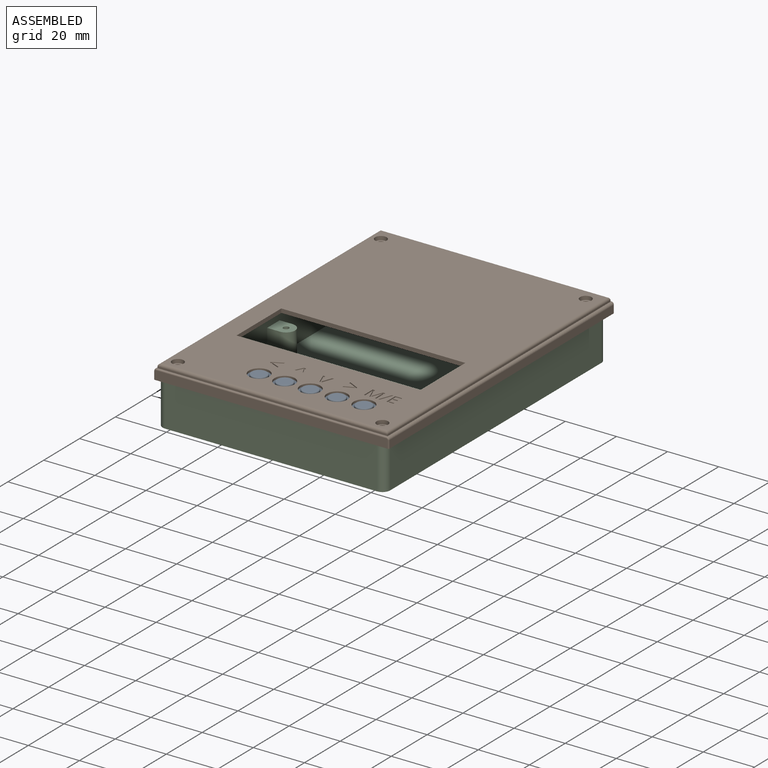
[diagram: assembled view]
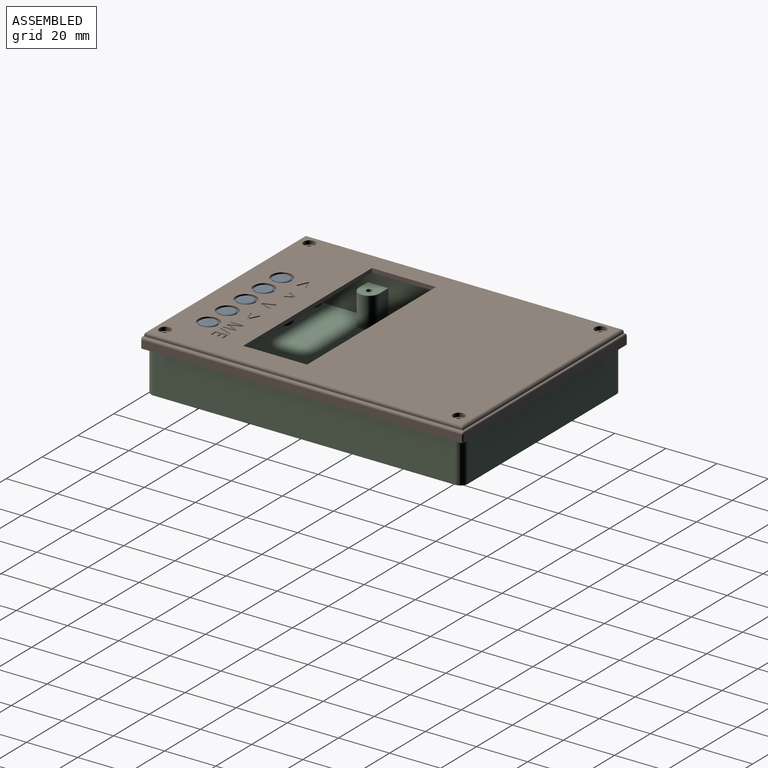
[diagram: assembled view, second angle]
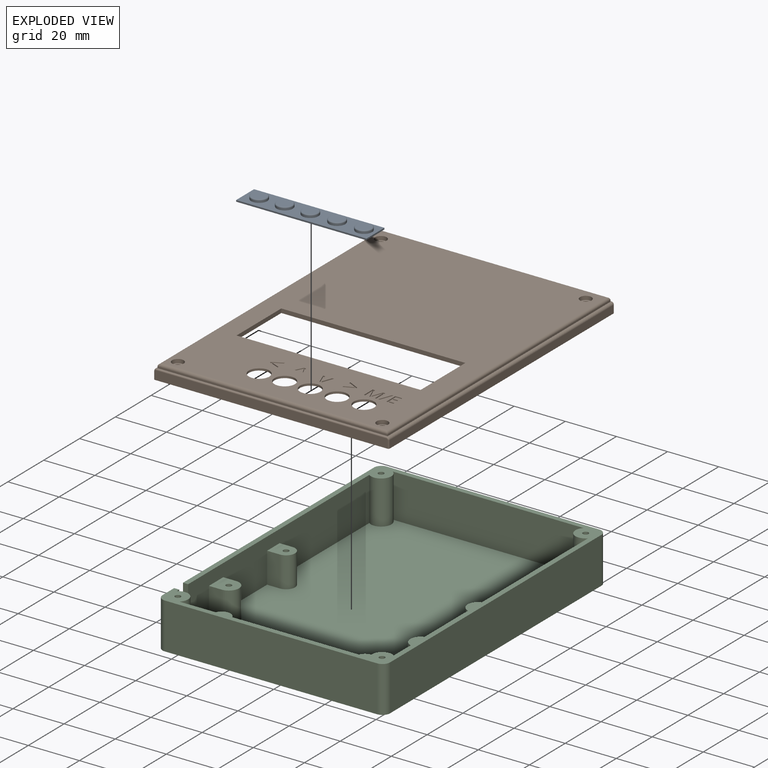
[diagram: exploded view]
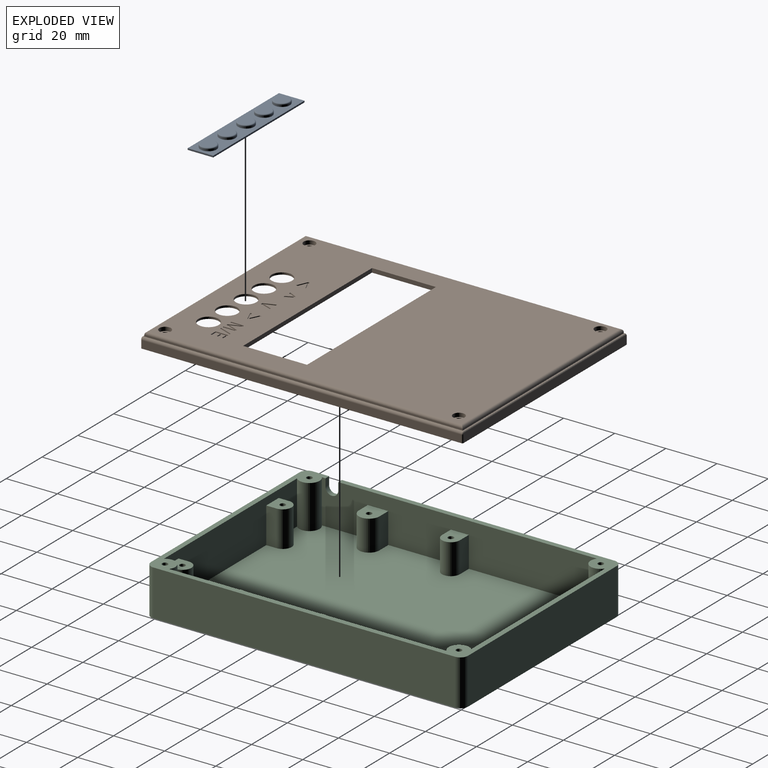
[diagram: exploded view, second angle]
ASSEMBLY  parts=3 mates=2
PART A: 31 faces, bbox 51x10x1.8 mm
  f0: plane 51x0.6mm, normal (0,-1,0), area 30.6mm2, adj f1,f7,f9,f10
  f1: plane 10x0.6mm, normal (1,0,0), area 6mm2, adj f0,f2,f9,f10
  f2: plane 51x0.6mm, normal (0,1,0), area 30.6mm2, adj f1,f7,f9,f10
  f3: cylinder r=2.25mm len=4.5mm, axis (0,0,-1), area 17mm2, adj f10,f22
  f4: cylinder r=2.25mm len=4.5mm, axis (0,0,-1), area 17mm2, adj f10,f20
  f5: cylinder r=2.25mm len=4.5mm, axis (0,0,-1), area 17mm2, adj f10,f18
  f6: cylinder r=2.25mm len=4.5mm, axis (0,0,-1), area 17mm2, adj f10,f16
  f7: plane 10x0.6mm, normal (-1,0,0), area 6mm2, adj f0,f2,f9,f10
  f8: cylinder r=2.25mm len=4.5mm, axis (0,0,-1), area 17mm2, adj f10,f24
  f9: plane 51x10mm, normal (0,0,1), area 354.1mm2, adj f0,f1,f2,f7,f11,f12,f13,f14
  f10: plane 51x10mm, normal (0,0,-1), area 430.5mm2, adj f0,f1,f2,f3,f4,f5,f6,f7
  f11: cylinder r=3.15mm len=6.3mm, axis (0,0,-1), area 15.8mm2, adj f9,f30
  f12: cylinder r=3.15mm len=6.3mm, axis (0,0,-1), area 15.8mm2, adj f9,f29
  f13: cylinder r=3.15mm len=6.3mm, axis (0,0,-1), area 15.8mm2, adj f9,f28
  f14: cylinder r=3.15mm len=6.3mm, axis (0,0,-1), area 15.8mm2, adj f9,f27
  f15: cylinder r=3.15mm len=6.3mm, axis (0,0,-1), area 15.8mm2, adj f9,f26
  f16: plane 4.5x4.5mm, normal (0,0,-1), area 15.9mm2, adj f6
  f17: plane 5.5x5.5mm, normal (0,0,1), area 23.8mm2, adj f30
  f18: plane 4.5x4.5mm, normal (0,0,-1), area 15.9mm2, adj f5
  f19: plane 5.5x5.5mm, normal (0,0,1), area 23.8mm2, adj f29
  f20: plane 4.5x4.5mm, normal (0,0,-1), area 15.9mm2, adj f4
  f21: plane 5.5x5.5mm, normal (0,0,1), area 23.8mm2, adj f28
  f22: plane 4.5x4.5mm, normal (0,0,-1), area 15.9mm2, adj f3
  f23: plane 5.5x5.5mm, normal (0,0,1), area 23.8mm2, adj f27
  f24: plane 4.5x4.5mm, normal (0,0,-1), area 15.9mm2, adj f8
  f25: plane 5.5x5.5mm, normal (0,0,1), area 23.8mm2, adj f26
  f26: torus R=2.75mm, axis (0,0,1), area 11.9mm2, adj f15,f25
  f27: torus R=2.75mm, axis (0,0,1), area 11.9mm2, adj f14,f23
  f28: torus R=2.75mm, axis (0,0,1), area 11.9mm2, adj f13,f21
  f29: torus R=2.75mm, axis (0,0,1), area 11.9mm2, adj f12,f19
  f30: torus R=2.75mm, axis (0,0,1), area 11.9mm2, adj f11,f17
PART B: 142 faces, bbox 92.2x126x5.6 mm
  f0: cylinder r=1.5mm len=3mm, axis (0,0,-1), area 24.5mm2, adj f35,f141
  f1: cylinder r=1.5mm len=3mm, axis (0,0,-1), area 24.5mm2, adj f35,f139
  f2: cylinder r=1.5mm len=3mm, axis (0,0,-1), area 24.5mm2, adj f35,f137
  f3: cylinder r=1.5mm len=3mm, axis (0,0,-1), area 24.5mm2, adj f35,f135
  f4: plane 122.5x88mm, normal (0,0,1), area 8626.3mm2, adj f14,f15,f16,f17,f18,f19,f20,f21
  f5: plane 12.75x1.5mm, normal (1,0,0), area 16.6mm2, adj f6,f35,f39,f61
  f6: plane 126x92mm, normal (0,0,-1), area 382.2mm2, adj f5,f36,f37,f38,f39,f40,f41,f42
  f7: plane 90x0.25mm, normal (0,0,1), area 22.5mm2, adj f11,f45,f46,f60
  f8: plane 124.5x0.6mm, normal (1,0,0), area 74.7mm2, adj f9,f11,f45,f48
  f9: plane 90x0.6mm, normal (0,1,0), area 54mm2, adj f8,f10,f44,f47
  f10: plane 124.5x0.6mm, normal (-1,0,0), area 74.7mm2, adj f9,f11,f46,f49
  f11: plane 90x0.6mm, normal (0,-1,0), area 54mm2, adj f7,f8,f10,f50
  f12: plane 120.5x86mm, normal (0,0,-1), area 7752.3mm2, adj f14,f15,f16,f21,f23,f24,f25,f26
  f13: plane 53x12mm, normal (0,0,-1), area 384.7mm2, adj f17,f18,f19,f20,f22,f23,f24,f25
  f14: plane 25x1.6mm, normal (1,0,0), area 40mm2, adj f4,f12,f15,f21
  f15: plane 72x1.6mm, normal (0,-1,0), area 115.2mm2, adj f4,f12,f14,f16
  f16: plane 25x1.6mm, normal (-1,0,0), area 40mm2, adj f4,f12,f15,f21
  f17: cylinder r=4mm len=8mm, axis (0,0,-1), area 20.1mm2, adj f4,f13
  f18: cylinder r=4mm len=8mm, axis (0,0,-1), area 20.1mm2, adj f4,f13
  f19: cylinder r=4mm len=8mm, axis (0,0,-1), area 20.1mm2, adj f4,f13
  f20: cylinder r=4mm len=8mm, axis (0,0,-1), area 20.1mm2, adj f4,f13
  f21: plane 72x1.6mm, normal (0,1,0), area 115.2mm2, adj f4,f12,f14,f16
  f22: cylinder r=4mm len=8mm, axis (0,0,-1), area 20.1mm2, adj f4,f13
  f23: plane 12x0.8mm, normal (1,0,0), area 9.6mm2, adj f12,f13,f24,f26
  f24: plane 53x0.8mm, normal (0,-1,0), area 42.4mm2, adj f12,f13,f23,f25
  f25: plane 12x0.8mm, normal (-1,0,0), area 9.6mm2, adj f12,f13,f24,f26
  f26: plane 53x0.8mm, normal (0,1,0), area 42.4mm2, adj f12,f13,f23,f25
  f27: plane 74.22x2.5mm, normal (0,1,0), area 185.6mm2, adj f12,f28,f34,f35
  f28: cylinder r=4mm len=7.2mm, axis (0,0,1), area 31.7mm2, adj f12,f27,f29,f35
  f29: plane 110.85x2.5mm, normal (-1,0,0), area 277.1mm2, adj f12,f28,f30,f35
  f30: cylinder r=4mm len=7.8mm, axis (0,0,1), area 38.9mm2, adj f12,f29,f31,f35
  f31: plane 77.86x2.5mm, normal (0,-1,0), area 194.7mm2, adj f12,f30,f32,f35
  f32: cylinder r=4mm len=8mm, axis (0,0,1), area 37.9mm2, adj f12,f31,f33,f35
  f33: plane 107.46x2.5mm, normal (1,0,0), area 268.7mm2, adj f12,f32,f34,f35
  f34: cylinder r=4mm len=6.8mm, axis (0,0,1), area 30.5mm2, adj f12,f27,f33,f35
  f35: plane 124.5x90mm, normal (0,0,-1), area 988.4mm2, adj f0,f1,f2,f3,f5,f27,f28,f29
  f36: plane 124.5x1.5mm, normal (-1,0,0), area 186.7mm2, adj f6,f35,f37,f39
  f37: plane 90x1.5mm, normal (0,-1,0), area 135mm2, adj f6,f35,f36,f38
  f38: plane 111.75x1.5mm, normal (1,0,0), area 165.1mm2, adj f6,f35,f37,f61
  f39: plane 90x1.5mm, normal (0,1,0), area 135mm2, adj f5,f6,f35,f36
  f40: plane 125x3mm, normal (-1,0,0), area 370mm2, adj f6,f46,f51,f56,f61
  f41: plane 91x3.5mm, normal (0,1,0), area 318.4mm2, adj f6,f51,f52,f53,f54,f55
  f42: plane 125x3mm, normal (1,0,0), area 375mm2, adj f6,f45,f52,f57
  f43: plane 91x3.5mm, normal (0,-1,0), area 318.4mm2, adj f6,f56,f57,f58,f59,f60
  f44: plane 90x0.25mm, normal (0,0,1), area 22.5mm2, adj f9,f45,f46,f55
  f45: cylinder r=1mm len=125mm, axis (0,-1,0), area 196.3mm2, adj f7,f8,f42,f44,f54,f59
  f46: cylinder r=1mm len=125mm, axis (0,1,0), area 196.3mm2, adj f7,f10,f40,f44,f53,f58
  f47: cylinder r=1mm len=90mm, axis (1,0,0), area 140.2mm2, adj f4,f9,f48,f49
  f48: cylinder r=1mm len=124.5mm, axis (0,-1,0), area 194.4mm2, adj f4,f8,f47,f50
  f49: cylinder r=1mm len=124.5mm, axis (0,1,0), area 194.4mm2, adj f4,f10,f47,f50
  f50: cylinder r=1mm len=90mm, axis (-1,0,0), area 140.2mm2, adj f4,f11,f48,f49
  f51: cylinder r=0.5mm len=3mm, axis (0,0,-1), area 2.4mm2, adj f6,f40,f41,f53
  f52: cylinder r=0.5mm len=3mm, axis (0,0,1), area 2.4mm2, adj f6,f41,f42,f54
  f53: torus R=0.5mm, axis (0,-1,0), area 1mm2, adj f41,f46,f51,f55
  f54: torus R=0.5mm, axis (0,-1,0), area 1mm2, adj f41,f45,f52,f55
  f55: cylinder r=0.5mm len=90mm, axis (1,0,0), area 70.7mm2, adj f41,f44,f53,f54
  f56: cylinder r=0.5mm len=3mm, axis (0,0,1), area 2.4mm2, adj f6,f40,f43,f58
  f57: cylinder r=0.5mm len=3mm, axis (0,0,-1), area 2.4mm2, adj f6,f42,f43,f59
  f58: torus R=0.5mm, axis (0,-1,0), area 1mm2, adj f43,f46,f56,f60
  f59: torus R=0.5mm, axis (0,-1,0), area 1mm2, adj f43,f45,f57,f60
  f60: cylinder r=0.5mm len=90mm, axis (-1,0,0), area 70.7mm2, adj f7,f43,f58,f59
  f61: cylinder r=2.5mm len=4.58mm, axis (-1,0,0), area 5.8mm2, adj f5,f6,f38,f40
  f62: plane 2.6x1.27mm, normal (0.9,0.44,0), area 1.2mm2, adj f4,f63,f68,f69
  f63: plane 0.67x0.4mm, normal (0,1,0), area 0.3mm2, adj f4,f62,f64,f69
  f64: plane 3.02x1.52mm, normal (-0.89,-0.45,0), area 1.4mm2, adj f4,f63,f65,f69
  f65: plane 0.83x0.4mm, normal (0,-1,0), area 0.3mm2, adj f4,f64,f66,f69
  f66: plane 3.02x1.51mm, normal (0.89,-0.45,0), area 1.3mm2, adj f4,f65,f67,f69
  f67: plane 0.67x0.4mm, normal (0,1,0), area 0.3mm2, adj f4,f66,f68,f69
  f68: plane 2.6x1.25mm, normal (-0.9,0.44,0), area 1.2mm2, adj f4,f62,f67,f69
  f69: plane 3.86x3.02mm, normal (0,0,1), area 3.8mm2, adj f62,f63,f64,f65,f66,f67,f68
  f70: plane 4.2x1.84mm, normal (0.4,0.92,0), area 1.8mm2, adj f4,f71,f76,f77
  f71: plane 0.66x0.4mm, normal (-1,0,0), area 0.3mm2, adj f4,f70,f72,f77
  f72: plane 3.42x1.43mm, normal (-0.39,-0.92,0), area 1.5mm2, adj f4,f71,f73,f77
  f73: plane 3.42x1.62mm, normal (-0.43,0.9,0), area 1.5mm2, adj f4,f72,f74,f77
  f74: plane 0.65x0.4mm, normal (-1,0,0), area 0.3mm2, adj f4,f73,f75,f77
  f75: plane 4.2x2.09mm, normal (0.45,-0.89,0), area 1.9mm2, adj f4,f74,f76,f77
  f76: plane 0.43x0.4mm, normal (1,0,0), area 0.2mm2, adj f4,f70,f75,f77
  f77: plane 4.36x4.2mm, normal (0,0,1), area 4.8mm2, adj f70,f71,f72,f73,f74,f75,f76
  f78: plane 4.5x1.71mm, normal (0.93,0.35,0), area 1.9mm2, adj f4,f79,f87,f88
  f79: plane 0.8x0.4mm, normal (0,1,0), area 0.3mm2, adj f4,f78,f80,f88
  f80: plane 4.5x1.71mm, normal (-0.93,0.35,0), area 1.9mm2, adj f4,f79,f81,f88
  f81: plane 0.73x0.4mm, normal (0,-1,0), area 0.3mm2, adj f4,f80,f82,f88
  f82: extruded ~2.98x1.08mm, area 1.3mm2, adj f4,f81,f83,f88
  f83: extruded ~0.9x0.4mm, area 0.4mm2, adj f4,f82,f84,f88
  f84: plane 0.4x0.03mm, normal (0,-1,0), area 0mm2, adj f4,f83,f85,f88
  f85: extruded ~1.21x0.4mm, area 0.5mm2, adj f4,f84,f86,f88
  f86: plane 2.67x0.97mm, normal (-0.94,-0.34,0), area 1.1mm2, adj f4,f85,f87,f88
  f87: plane 0.73x0.4mm, normal (0,-1,0), area 0.3mm2, adj f4,f78,f86,f88
  f88: plane 4.5x4.21mm, normal (0,0,1), area 6mm2, adj f78,f79,f80,f81,f82,f83,f84,f85
  f89: plane 3.36x1.4mm, normal (0.38,-0.92,0), area 1.5mm2, adj f4,f90,f95,f96
  f90: plane 0.65x0.4mm, normal (1,0,0), area 0.3mm2, adj f4,f89,f91,f96
  f91: plane 4.12x1.81mm, normal (-0.4,0.92,0), area 1.8mm2, adj f4,f90,f92,f96
  f92: plane 0.42x0.4mm, normal (-1,0,0), area 0.2mm2, adj f4,f91,f93,f96
  f93: plane 4.12x2.06mm, normal (-0.45,-0.89,0), area 1.8mm2, adj f4,f92,f94,f96
  f94: plane 0.64x0.4mm, normal (1,0,0), area 0.3mm2, adj f4,f93,f95,f96
  f95: plane 3.36x1.6mm, normal (0.43,0.9,0), area 1.5mm2, adj f4,f89,f94,f96
  f96: plane 4.29x4.12mm, normal (0,0,1), area 4.7mm2, adj f89,f90,f91,f92,f93,f94,f95
  f97: plane 4.39x1.68mm, normal (0.93,0.36,0), area 1.9mm2, adj f4,f98,f114,f115
  f98: plane 0.46x0.4mm, normal (0,1,0), area 0.2mm2, adj f4,f97,f99,f115
  f99: plane 4.39x1.7mm, normal (-0.93,0.36,0), area 1.9mm2, adj f4,f98,f100,f115
  f100: plane 0.4x0.03mm, normal (0,1,0), area 0mm2, adj f4,f99,f101,f115
  f101: extruded ~1.19x0.4mm, area 0.5mm2, adj f4,f100,f102,f115
  f102: plane 3.19x0.4mm, normal (1,0,0), area 1.3mm2, adj f4,f101,f103,f115
  f103: plane 0.58x0.4mm, normal (0,1,0), area 0.2mm2, adj f4,f102,f104,f115
  f104: plane 4.96x0.4mm, normal (-1,0,0), area 2mm2, adj f4,f103,f105,f115
  f105: plane 0.86x0.4mm, normal (0,-1,0), area 0.3mm2, adj f4,f104,f106,f115
  f106: plane 4.09x1.58mm, normal (0.93,-0.36,0), area 1.8mm2, adj f4,f105,f107,f115
  f107: plane 0.4x0.03mm, normal (0,-1,0), area 0mm2, adj f4,f106,f108,f115
  f108: plane 4.09x1.57mm, normal (-0.93,-0.36,0), area 1.8mm2, adj f4,f107,f109,f115
  f109: plane 0.87x0.4mm, normal (0,-1,0), area 0.3mm2, adj f4,f108,f110,f115
  f110: plane 4.96x0.4mm, normal (1,0,0), area 2mm2, adj f4,f109,f111,f115
  f111: plane 0.53x0.4mm, normal (0,1,0), area 0.2mm2, adj f4,f110,f112,f115
  f112: plane 3.15x0.4mm, normal (-1,0,0), area 1.3mm2, adj f4,f111,f113,f115
  f113: extruded ~1.24x0.4mm, area 0.5mm2, adj f4,f112,f114,f115
  f114: plane 0.4x0.03mm, normal (0,1,0), area 0mm2, adj f4,f97,f113,f115
  f115: plane 4.96x4.91mm, normal (0,0,1), area 10.5mm2, adj f97,f98,f99,f100,f101,f102,f103,f104
  f116: plane 4.96x1.85mm, normal (-0.94,0.35,0), area 2.1mm2, adj f4,f117,f119,f120
  f117: plane 0.56x0.4mm, normal (0,-1,0), area 0.2mm2, adj f4,f116,f118,f120
  f118: plane 4.96x1.85mm, normal (0.94,-0.35,0), area 2.1mm2, adj f4,f117,f119,f120
  f119: plane 0.56x0.4mm, normal (0,1,0), area 0.2mm2, adj f4,f116,f118,f120
  f120: plane 4.96x2.41mm, normal (0,0,1), area 2.8mm2, adj f116,f117,f118,f119
  f121: plane 2.76x0.4mm, normal (0,1,0), area 1.1mm2, adj f4,f122,f132,f133
  f122: plane 0.52x0.4mm, normal (-1,0,0), area 0.2mm2, adj f4,f121,f123,f133
  f123: plane 2.19x0.4mm, normal (0,-1,0), area 0.9mm2, adj f4,f122,f124,f133
  f124: plane 1.82x0.4mm, normal (-1,0,0), area 0.7mm2, adj f4,f123,f125,f133
  f125: plane 2.06x0.4mm, normal (0,1,0), area 0.8mm2, adj f4,f124,f126,f133
  f126: plane 0.51x0.4mm, normal (-1,0,0), area 0.2mm2, adj f4,f125,f127,f133
  f127: plane 2.06x0.4mm, normal (0,-1,0), area 0.8mm2, adj f4,f126,f128,f133
  f128: plane 1.6x0.4mm, normal (-1,0,0), area 0.6mm2, adj f4,f127,f129,f133
  f129: plane 2.19x0.4mm, normal (0,1,0), area 0.9mm2, adj f4,f128,f130,f133
  f130: plane 0.51x0.4mm, normal (-1,0,0), area 0.2mm2, adj f4,f129,f131,f133
  f131: plane 2.76x0.4mm, normal (0,-1,0), area 1.1mm2, adj f4,f130,f132,f133
  f132: plane 4.96x0.4mm, normal (1,0,0), area 2mm2, adj f4,f121,f131,f133
  f133: plane 4.96x2.76mm, normal (0,0,1), area 6.2mm2, adj f121,f122,f123,f124,f125,f126,f127,f128
  f134: cylinder r=2.25mm len=4.5mm, axis (0,0,1), area 21.2mm2, adj f4,f135
  f135: plane 4.5x4.5mm, normal (0,0,1), area 8.8mm2, adj f3,f134
  f136: cylinder r=2.25mm len=4.5mm, axis (0,0,1), area 21.2mm2, adj f4,f137
  f137: plane 4.5x4.5mm, normal (0,0,1), area 8.8mm2, adj f2,f136
  f138: cylinder r=2.25mm len=4.5mm, axis (0,0,1), area 21.2mm2, adj f4,f139
  f139: plane 4.5x4.5mm, normal (0,0,1), area 8.8mm2, adj f1,f138
  f140: cylinder r=2.25mm len=4.5mm, axis (0,0,1), area 21.2mm2, adj f4,f141
  f141: plane 4.5x4.5mm, normal (0,0,1), area 8.8mm2, adj f0,f140
PART C: 130 faces, bbox 89.3x124.3x18.3 mm
  f0: cylinder r=1.1mm len=10mm, axis (0,0,-1), area 69.1mm2, adj f12,f121
  f1: cylinder r=1.1mm len=10mm, axis (0,0,-1), area 69.1mm2, adj f12,f128
  f2: cylinder r=1.1mm len=10mm, axis (0,0,-1), area 69.1mm2, adj f12,f124
  f3: cylinder r=1.1mm len=10mm, axis (0,0,-1), area 69.1mm2, adj f12,f125
  f4: plane 0x0mm, normal (0,0,1), area 0mm2, adj f6,f7,f95
  f5: plane 120x85mm, normal (0,0,1), area 9697mm2, adj f8,f9,f10,f11,f28,f29,f30,f32
  f6: plane 17x0mm, normal (0,-1,0), area 0mm2, adj f4,f7,f12,f95
  f7: plane 17x0mm, normal (-1,0,0), area 0mm2, adj f4,f6,f12,f95
  f8: plane 74.53x17mm, normal (0,-1,0), area 1267mm2, adj f5,f12,f93,f94
  f9: plane 108.47x17mm, normal (-1,0,0), area 1651.6mm2, adj f5,f12,f40,f42,f43,f48,f50,f51
  f10: plane 74.42x17mm, normal (0,1,0), area 1069.1mm2, adj f5,f12,f29,f30,f31,f33,f34,f35
  f11: plane 107.58x17mm, normal (1,0,0), area 1624mm2, adj f5,f12,f37,f38,f39,f45,f46,f47
  f12: plane 124x89mm, normal (0,0,1), area 961.9mm2, adj f0,f1,f2,f3,f6,f7,f8,f9
  f13: cylinder r=1.1mm len=7mm, axis (0,0,1), area 48.4mm2, adj f35,f129
  f14: cylinder r=1.1mm len=7mm, axis (0,0,1), area 48.4mm2, adj f31,f120
  f15: cylinder r=1.1mm len=5mm, axis (0,0,1), area 34.6mm2, adj f39,f123
  f16: cylinder r=1.1mm len=5mm, axis (0,0,1), area 34.6mm2, adj f47,f122
  f17: cylinder r=1.1mm len=5mm, axis (0,0,1), area 34.6mm2, adj f51,f127
  f18: cylinder r=1.1mm len=5mm, axis (0,0,1), area 34.6mm2, adj f43,f126
  f19: plane 118x18mm, normal (1,0,0), area 2124mm2, adj f12,f23,f24,f27
  f20: plane 83x18mm, normal (0,1,0), area 1494mm2, adj f12,f23,f24,f25
  f21: plane 118x18mm, normal (-1,0,0), area 2099.2mm2, adj f12,f23,f25,f26,f88,f89,f90
  f22: plane 83x18mm, normal (0,-1,0), area 1494mm2, adj f12,f23,f26,f27
  f23: plane 124x89mm, normal (0,0,-1), area 10882.7mm2, adj f19,f20,f21,f22,f24,f25,f26,f27
  f24: cylinder r=3mm len=18mm, axis (0,0,1), area 84.8mm2, adj f12,f19,f20,f23
  f25: cylinder r=3mm len=18mm, axis (0,0,-1), area 84.8mm2, adj f12,f20,f21,f23
  f26: cylinder r=3mm len=18mm, axis (0,0,1), area 84.8mm2, adj f12,f21,f22,f23
  f27: cylinder r=3mm len=18mm, axis (0,0,-1), area 84.8mm2, adj f12,f19,f22,f23
  f28: cylinder r=3.5mm len=14mm, axis (0,0,-1), area 153.9mm2, adj f5,f29,f30,f31
  f29: plane 14x4mm, normal (-1,0,0), area 56mm2, adj f5,f10,f28,f31
  f30: plane 14x4mm, normal (1,0,0), area 56mm2, adj f5,f10,f28,f31
  f31: plane 7.5x7mm, normal (0,0,1), area 43.4mm2, adj f10,f14,f28,f29,f30
  f32: cylinder r=3.5mm len=14mm, axis (0,0,-1), area 153.9mm2, adj f5,f33,f34,f35
  f33: plane 14x4mm, normal (-1,0,0), area 56mm2, adj f5,f10,f32,f35
  f34: plane 14x4mm, normal (1,0,0), area 56mm2, adj f5,f10,f32,f35
  f35: plane 7.5x7mm, normal (0,0,1), area 43.4mm2, adj f10,f13,f32,f33,f34
  f36: cylinder r=3.5mm len=12mm, axis (0,0,-1), area 131.9mm2, adj f5,f37,f38,f39
  f37: plane 12x5mm, normal (0,1,0), area 60mm2, adj f5,f11,f36,f39
  f38: plane 12x5mm, normal (0,-1,0), area 60mm2, adj f5,f11,f36,f39
  f39: plane 8.5x7mm, normal (0,0,1), area 50.4mm2, adj f11,f15,f36,f37,f38
  f40: plane 12x5mm, normal (0,1,0), area 60mm2, adj f5,f9,f41,f43
  f41: cylinder r=4mm len=12mm, axis (0,0,-1), area 150.8mm2, adj f5,f40,f42,f43
  f42: plane 12x5mm, normal (-0.01,-1,0), area 60mm2, adj f5,f9,f41,f43
  f43: plane 9x8.03mm, normal (0,0,1), area 61.4mm2, adj f9,f18,f40,f41,f42
  f44: cylinder r=4mm len=12mm, axis (0,0,-1), area 150.8mm2, adj f5,f45,f46,f47
  f45: plane 12x5mm, normal (0,1,0), area 60mm2, adj f5,f11,f44,f47
  f46: plane 12x5mm, normal (0,-1,0), area 60mm2, adj f5,f11,f44,f47
  f47: plane 9x8mm, normal (0,0,1), area 61.3mm2, adj f11,f16,f44,f45,f46
  f48: plane 12x5mm, normal (0,1,0), area 60mm2, adj f5,f9,f49,f51
  f49: cylinder r=4mm len=12mm, axis (0,0,-1), area 150.8mm2, adj f5,f48,f50,f51
  f50: plane 12x5mm, normal (0,-1,0), area 60mm2, adj f5,f9,f49,f51
  f51: plane 9x8mm, normal (0,0,1), area 61.3mm2, adj f9,f17,f48,f49,f50
  f52: plane 7.16x2.48mm, normal (-1,-0.04,0), area 16.4mm2, adj f23,f53,f57,f126
  f53: plane 7.05x2.01mm, normal (-0.53,0.85,0), area 16.4mm2, adj f23,f52,f54,f126
  f54: plane 7.05x2.09mm, normal (0.47,0.88,0), area 16.4mm2, adj f23,f53,f55,f126
  f55: plane 7.31x2.63mm, normal (1,0.04,0), area 16.4mm2, adj f23,f54,f56,f126
  f56: plane 7.05x2.01mm, normal (0.53,-0.85,0), area 16.4mm2, adj f23,f55,f57,f126
  f57: plane 7.05x2.09mm, normal (-0.47,-0.88,0), area 16.4mm2, adj f23,f52,f56,f126
  f58: plane 7.16x2.48mm, normal (-1,-0.03,0), area 16.4mm2, adj f23,f59,f63,f127
  f59: plane 7.05x2.02mm, normal (-0.52,0.85,0), area 16.4mm2, adj f23,f58,f60,f127
  f60: plane 7.05x2.08mm, normal (0.48,0.88,0), area 16.4mm2, adj f23,f59,f61,f127
  f61: plane 7.3x2.62mm, normal (1,0.03,0), area 16.4mm2, adj f23,f60,f62,f127
  f62: plane 7.05x2.02mm, normal (0.52,-0.85,0), area 16.4mm2, adj f23,f61,f63,f127
  f63: plane 7.05x2.08mm, normal (-0.48,-0.88,0), area 16.4mm2, adj f23,f58,f62,f127
  f64: plane 7.16x2.48mm, normal (-1,-0.03,0), area 16.4mm2, adj f23,f65,f69,f122
  f65: plane 7.05x2.02mm, normal (-0.52,0.85,0), area 16.4mm2, adj f23,f64,f66,f122
  f66: plane 7.05x2.08mm, normal (0.48,0.88,0), area 16.4mm2, adj f23,f65,f67,f122
  f67: plane 7.3x2.62mm, normal (1,0.03,0), area 16.4mm2, adj f23,f66,f68,f122
  f68: plane 7.05x2.02mm, normal (0.52,-0.85,0), area 16.4mm2, adj f23,f67,f69,f122
  f69: plane 7.05x2.08mm, normal (-0.48,-0.88,0), area 16.4mm2, adj f23,f64,f68,f122
  f70: plane 7.16x2.48mm, normal (-1,-0.03,0), area 16.4mm2, adj f23,f71,f75,f123
  f71: plane 7.05x2.02mm, normal (-0.52,0.85,0), area 16.4mm2, adj f23,f70,f72,f123
  f72: plane 7.05x2.08mm, normal (0.48,0.88,0), area 16.4mm2, adj f23,f71,f73,f123
  f73: plane 7.3x2.62mm, normal (1,0.03,0), area 16.4mm2, adj f23,f72,f74,f123
  f74: plane 7.05x2.02mm, normal (0.52,-0.85,0), area 16.4mm2, adj f23,f73,f75,f123
  f75: plane 7.05x2.08mm, normal (-0.48,-0.88,0), area 16.4mm2, adj f23,f70,f74,f123
  f76: plane 7.16x2.48mm, normal (-1,0.04,0), area 16.4mm2, adj f23,f77,f81,f120
  f77: plane 7.05x2.1mm, normal (-0.46,0.89,0), area 16.4mm2, adj f23,f76,f78,f120
  f78: plane 7.05x2mm, normal (0.53,0.85,0), area 16.4mm2, adj f23,f77,f79,f120
  f79: plane 7.32x2.63mm, normal (1,-0.04,0), area 16.4mm2, adj f23,f78,f80,f120
  f80: plane 7.05x2.1mm, normal (0.46,-0.89,0), area 16.4mm2, adj f23,f79,f81,f120
  f81: plane 7.05x2mm, normal (-0.53,-0.85,0), area 16.4mm2, adj f23,f76,f80,f120
  f82: plane 7.16x2.48mm, normal (-1,-0.02,0), area 16.4mm2, adj f23,f83,f87,f129
  f83: plane 7.05x2.02mm, normal (-0.52,0.85,0), area 16.4mm2, adj f23,f82,f84,f129
  f84: plane 7.05x2.08mm, normal (0.48,0.88,0), area 16.4mm2, adj f23,f83,f85,f129
  f85: plane 7.3x2.61mm, normal (1,0.02,0), area 16.4mm2, adj f23,f84,f86,f129
  f86: plane 7.05x2.02mm, normal (0.52,-0.85,0), area 16.4mm2, adj f23,f85,f87,f129
  f87: plane 7.05x2.08mm, normal (-0.48,-0.88,0), area 16.4mm2, adj f23,f82,f86,f129
  f88: plane 3.11x2mm, normal (0,-1,0), area 6.2mm2, adj f11,f12,f21,f89
  f89: cylinder r=2.5mm len=5mm, axis (-1,0,0), area 15.4mm2, adj f11,f21,f88,f90
  f90: plane 3.05x2mm, normal (0,1,0), area 6.1mm2, adj f11,f12,f21,f89
  f91: cylinder r=4mm len=17mm, axis (0,0,-1), area 211.8mm2, adj f5,f10,f11,f12
  f92: cylinder r=4mm len=17mm, axis (0,0,-1), area 195.7mm2, adj f5,f9,f10,f12
  f93: cylinder r=4mm len=17mm, axis (0,0,-1), area 213.6mm2, adj f5,f8,f11,f12
  f94: cylinder r=4mm len=17mm, axis (0,0,-1), area 213.7mm2, adj f5,f8,f9,f12
  f95: cylinder r=4mm len=17mm, axis (0,0,-1), area 0.1mm2, adj f4,f6,f7,f12
  f96: plane 7.05x2.27mm, normal (-0.29,0.96,0), area 16.4mm2, adj f23,f97,f101,f125
  f97: plane 7.05x1.72mm, normal (0.68,0.73,0), area 16.4mm2, adj f23,f96,f98,f125
  f98: plane 7.13x2.38mm, normal (0.97,-0.23,0), area 16.4mm2, adj f23,f97,f99,f125
  f99: plane 7.05x2.27mm, normal (0.29,-0.96,0), area 16.4mm2, adj f23,f98,f100,f125
  f100: plane 7.05x1.72mm, normal (-0.68,-0.73,0), area 16.4mm2, adj f23,f99,f101,f125
  f101: plane 7.16x2.42mm, normal (-0.97,0.23,0), area 16.4mm2, adj f23,f96,f100,f125
  f102: plane 7.05x2.23mm, normal (0.34,0.94,0), area 16.4mm2, adj f23,f103,f107,f124
  f103: plane 7.16x2.44mm, normal (0.98,0.18,0), area 16.4mm2, adj f23,f102,f104,f124
  f104: plane 7.05x1.81mm, normal (0.65,-0.76,0), area 16.4mm2, adj f23,f103,f105,f124
  f105: plane 7.05x2.23mm, normal (-0.34,-0.94,0), area 16.4mm2, adj f23,f104,f106,f124
  f106: plane 7.16x2.44mm, normal (-0.98,-0.18,0), area 16.4mm2, adj f23,f105,f107,f124
  f107: plane 7.05x1.81mm, normal (-0.65,0.76,0), area 16.4mm2, adj f23,f102,f106,f124
  f108: plane 7.05x1.8mm, normal (-0.65,0.76,0), area 16.4mm2, adj f23,f109,f113,f128
  f109: plane 7.05x2.23mm, normal (0.33,0.94,0), area 16.4mm2, adj f23,f108,f110,f128
  f110: plane 7.15x2.43mm, normal (0.98,0.18,0), area 16.4mm2, adj f23,f109,f111,f128
  f111: plane 7.05x1.8mm, normal (0.65,-0.76,0), area 16.4mm2, adj f23,f110,f112,f128
  f112: plane 7.05x2.23mm, normal (-0.33,-0.94,0), area 16.4mm2, adj f23,f111,f113,f128
  f113: plane 7.16x2.44mm, normal (-0.98,-0.18,0), area 16.4mm2, adj f23,f108,f112,f128
  f114: plane 7.05x2.21mm, normal (-0.36,0.93,0), area 16.4mm2, adj f23,f115,f119,f121
  f115: plane 7.05x1.84mm, normal (0.63,0.78,0), area 16.4mm2, adj f23,f114,f116,f121
  f116: plane 7.17x2.46mm, normal (0.99,-0.16,0), area 16.4mm2, adj f23,f115,f117,f121
  f117: plane 7.05x2.21mm, normal (0.36,-0.93,0), area 16.4mm2, adj f23,f116,f118,f121
  f118: plane 7.05x1.84mm, normal (-0.63,-0.78,0), area 16.4mm2, adj f23,f117,f119,f121
  f119: plane 7.16x2.45mm, normal (-0.99,0.16,0), area 16.4mm2, adj f23,f114,f118,f121
  f120: cone r=3.1mm half-angle=45deg, axis (0,0,-1), area 15.4mm2, adj f14,f76,f77,f78,f79,f80,f81
  f121: cone r=3.1mm half-angle=45deg, axis (0,0,-1), area 15.3mm2, adj f0,f114,f115,f116,f117,f118,f119
  f122: cone r=3.1mm half-angle=45deg, axis (0,0,-1), area 15.4mm2, adj f16,f64,f65,f66,f67,f68,f69
  f123: cone r=3.1mm half-angle=45deg, axis (0,0,-1), area 15.4mm2, adj f15,f70,f71,f72,f73,f74,f75
  f124: cone r=3.1mm half-angle=45deg, axis (0,0,-1), area 15.3mm2, adj f2,f102,f103,f104,f105,f106,f107
  f125: cone r=3.1mm half-angle=45deg, axis (0,0,-1), area 15.3mm2, adj f3,f96,f97,f98,f99,f100,f101
  f126: cone r=3.1mm half-angle=45deg, axis (0,0,-1), area 15.4mm2, adj f18,f52,f53,f54,f55,f56,f57
  f127: cone r=3.1mm half-angle=45deg, axis (0,0,-1), area 15.4mm2, adj f17,f58,f59,f60,f61,f62,f63
  f128: cone r=3.1mm half-angle=45deg, axis (0,0,-1), area 15.3mm2, adj f1,f108,f109,f110,f111,f112,f113
  f129: cone r=3.1mm half-angle=45deg, axis (0,0,-1), area 15.4mm2, adj f13,f82,f83,f84,f85,f86,f87
PLACE A t=(-54.09,-68.01,25.55)mm
PLACE B t=(-60.09,-18.26,26.55)mm
PLACE C t=(-60.59,-18.69,5.25)mm fixed
MATE fastened B.f20 <-> A.f15  axis (0,0,1) through (-33.09,-68.01,27.35)mm
MATE fastened B.f2 <-> C.f0  axis (0,0,-1) through (-100.49,-75.71,23.25)mm
